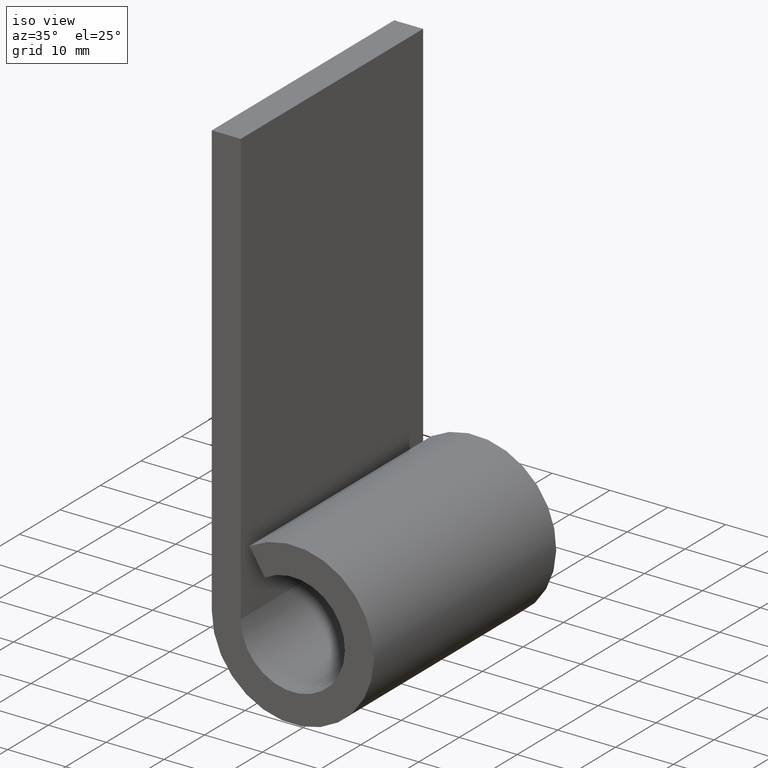
[diagram: clean part render]
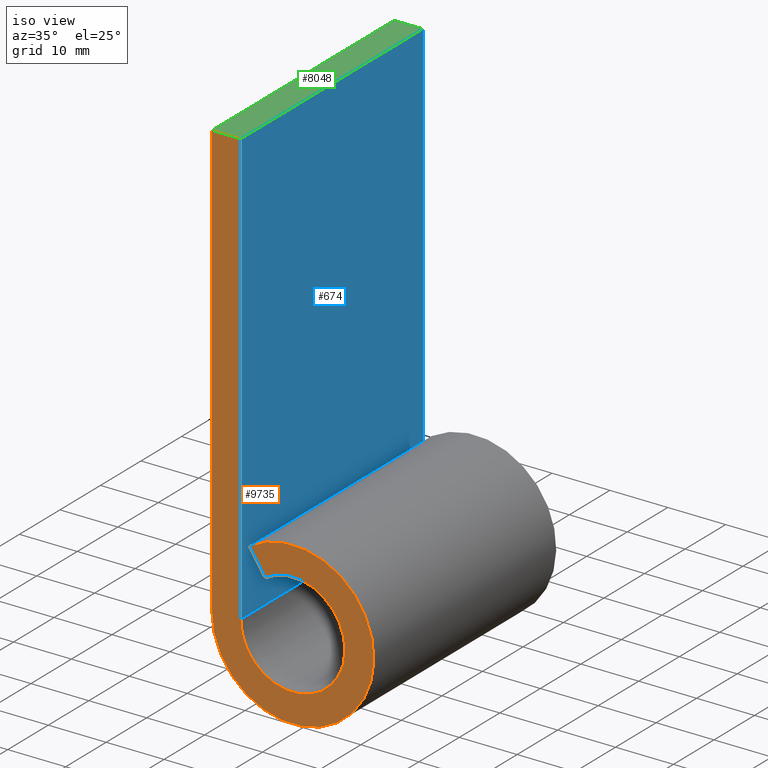
[diagram: same view with three faces highlighted in distinct colors, each labeled with its STEP entity id]
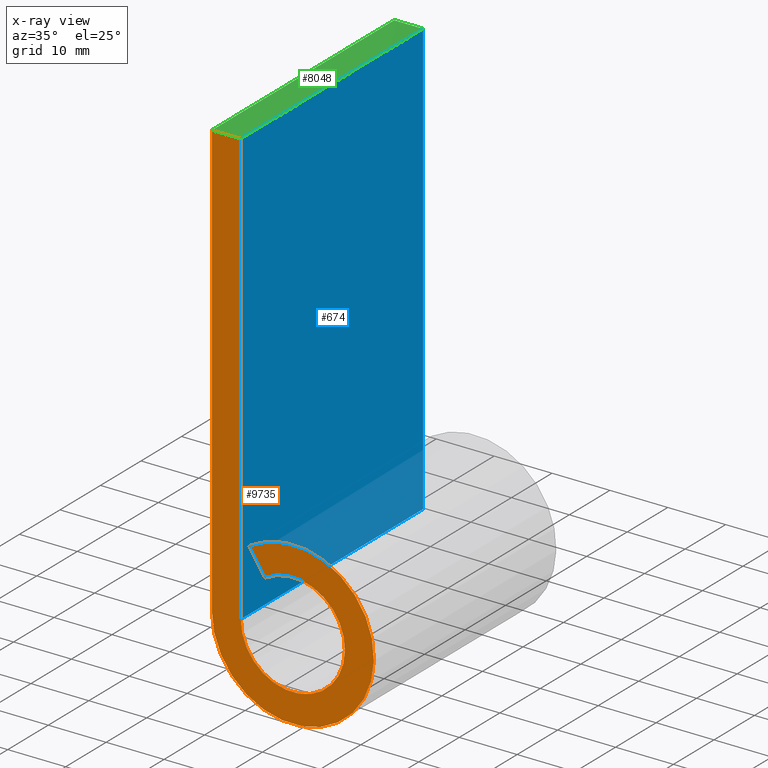
[diagram: x-ray of the same camera — body ghosted, the three highlighted faces saturated]
A machine part, iso view with three faces highlighted in distinct colors.
The next image is the same camera in x-ray (body ghosted, the three faces saturated) — at least one of them is partly hidden behind the body in this view.
Their STEP definitions:

[orange] entity #9735 — the highlighted planar face has unit normal (0, -1, 0).
#57 = VECTOR ( 'NONE', #6332, 1000.000000000000114 ) ;
#345 = VERTEX_POINT ( 'NONE', #6479 ) ;
#410 = CARTESIAN_POINT ( 'NONE',  ( -13.99999999999999822, -22.50000000000000000, 75.00000000000000000 ) ) ;
#713 = VERTEX_POINT ( 'NONE', #410 ) ;
#943 = VERTEX_POINT ( 'NONE', #2938 ) ;
#959 = AXIS2_PLACEMENT_3D ( 'NONE', #6820, #6085, #8614 ) ;
#1696 = ORIENTED_EDGE ( 'NONE', *, *, #11357, .F. ) ;
#1921 = DIRECTION ( 'NONE',  ( 0.000000000000000000, -1.000000000000000000, 0.000000000000000000 ) ) ;
#1935 = EDGE_CURVE ( 'NONE', #713, #345, #11274, .T. ) ;
#2123 = EDGE_CURVE ( 'NONE', #8665, #943, #4735, .T. ) ;
#2369 = EDGE_CURVE ( 'NONE', #345, #6331, #6689, .T. ) ;
#2690 = ORIENTED_EDGE ( 'NONE', *, *, #2123, .F. ) ;
#2890 = EDGE_CURVE ( 'NONE', #943, #7525, #9874, .T. ) ;
#2938 = CARTESIAN_POINT ( 'NONE',  ( -7.500000000000000000, -22.50000000000000000, 11.82159041753688911 ) ) ;
#3112 = DIRECTION ( 'NONE',  ( 2.312964634635742895E-17, 0.000000000000000000, -1.000000000000000000 ) ) ;
#3696 = DIRECTION ( 'NONE',  ( 0.000000000000000000, -0.000000000000000000, -1.000000000000000000 ) ) ;
#3732 = CARTESIAN_POINT ( 'NONE',  ( 8.673617379884035472E-15, -22.50000000000000000, 0.000000000000000000 ) ) ;
#4175 = CARTESIAN_POINT ( 'NONE',  ( -13.99999999999999645, -22.50000000000000000, 2.571758278209442450E-15 ) ) ;
#4419 = CIRCLE ( 'NONE', #959, 9.000000000000005329 ) ;
#4454 = CARTESIAN_POINT ( 'NONE',  ( -8.999999999999998224, -22.50000000000000000, 0.000000000000000000 ) ) ;
#4735 = LINE ( 'NONE', #10688, #57 ) ;
#5062 = EDGE_LOOP ( 'NONE', ( #5294, #1696, #5862, #2690, #6333, #8878 ) ) ;
#5294 = ORIENTED_EDGE ( 'NONE', *, *, #1935, .F. ) ;
#5591 = VECTOR ( 'NONE', #9191, 1000.000000000000000 ) ;
#5827 = CARTESIAN_POINT ( 'NONE',  ( -4.821428571428570287, -22.50000000000000000, 7.599593839845144139 ) ) ;
#5862 = ORIENTED_EDGE ( 'NONE', *, *, #2890, .F. ) ;
#6085 = DIRECTION ( 'NONE',  ( -0.000000000000000000, -1.000000000000000000, 0.000000000000000000 ) ) ;
#6203 = AXIS2_PLACEMENT_3D ( 'NONE', #7988, #8765, #10578 ) ;
#6331 = VERTEX_POINT ( 'NONE', #4454 ) ;
#6332 = DIRECTION ( 'NONE',  ( -0.5357142857142856984, -0.000000000000000000, 0.8443993155383492377 ) ) ;
#6333 = ORIENTED_EDGE ( 'NONE', *, *, #7507, .F. ) ;
#6464 = CARTESIAN_POINT ( 'NONE',  ( -13.99999999999999822, -22.50000000000000000, 75.00000000000000000 ) ) ;
#6479 = CARTESIAN_POINT ( 'NONE',  ( -9.000000000000000000, -22.50000000000000000, 75.00000000000000000 ) ) ;
#6526 = DIRECTION ( 'NONE',  ( 1.000000000000000000, 0.000000000000000000, 0.000000000000000000 ) ) ;
#6533 = VECTOR ( 'NONE', #3112, 1000.000000000000000 ) ;
#6689 = LINE ( 'NONE', #10118, #6533 ) ;
#6820 = CARTESIAN_POINT ( 'NONE',  ( 8.673617379884035472E-15, -22.50000000000000000, 0.000000000000000000 ) ) ;
#7507 = EDGE_CURVE ( 'NONE', #6331, #8665, #4419, .T. ) ;
#7525 = VERTEX_POINT ( 'NONE', #4175 ) ;
#7965 = LINE ( 'NONE', #6464, #5591 ) ;
#7988 = CARTESIAN_POINT ( 'NONE',  ( 8.673617379884035472E-15, -22.50000000000000000, 0.000000000000000000 ) ) ;
#8089 = PLANE ( 'NONE',  #9657 ) ;
#8614 = DIRECTION ( 'NONE',  ( 0.000000000000000000, 0.000000000000000000, -1.000000000000000000 ) ) ;
#8665 = VERTEX_POINT ( 'NONE', #5827 ) ;
#8765 = DIRECTION ( 'NONE',  ( 0.000000000000000000, 1.000000000000000000, -0.000000000000000000 ) ) ;
#8802 = VECTOR ( 'NONE', #6526, 1000.000000000000000 ) ;
#8878 = ORIENTED_EDGE ( 'NONE', *, *, #2369, .F. ) ;
#9191 = DIRECTION ( 'NONE',  ( -0.000000000000000000, -0.000000000000000000, 1.000000000000000000 ) ) ;
#9657 = AXIS2_PLACEMENT_3D ( 'NONE', #3732, #1921, #3696 ) ;
#9735 = ADVANCED_FACE ( 'NONE', ( #10161 ), #8089, .T. ) ;
#9874 = CIRCLE ( 'NONE', #6203, 14.00000000000000533 ) ;
#10118 = CARTESIAN_POINT ( 'NONE',  ( -9.000000000000000000, -22.50000000000000000, 75.00000000000000000 ) ) ;
#10161 = FACE_OUTER_BOUND ( 'NONE', #5062, .T. ) ;
#10578 = DIRECTION ( 'NONE',  ( 0.000000000000000000, 0.000000000000000000, -1.000000000000000000 ) ) ;
#10688 = CARTESIAN_POINT ( 'NONE',  ( -7.500000000000000000, -22.50000000000000000, 11.82159041753688911 ) ) ;
#10954 = CARTESIAN_POINT ( 'NONE',  ( -13.99999999999999822, -22.50000000000000000, 75.00000000000000000 ) ) ;
#11274 = LINE ( 'NONE', #10954, #8802 ) ;
#11357 = EDGE_CURVE ( 'NONE', #7525, #713, #7965, .T. ) ;

[blue] entity #674 — the highlighted planar face has unit normal (-1, 0, -0).
#345 = VERTEX_POINT ( 'NONE', #6479 ) ;
#423 = VECTOR ( 'NONE', #7749, 1000.000000000000000 ) ;
#629 = LINE ( 'NONE', #4440, #10736 ) ;
#674 = ADVANCED_FACE ( 'NONE', ( #6745 ), #7580, .F. ) ;
#772 = VECTOR ( 'NONE', #10195, 1000.000000000000000 ) ;
#1276 = ORIENTED_EDGE ( 'NONE', *, *, #10850, .F. ) ;
#1459 = CARTESIAN_POINT ( 'NONE',  ( -9.000000000000000000, 22.50000000000000000, 75.00000000000000000 ) ) ;
#2257 = DIRECTION ( 'NONE',  ( -1.000000000000000000, 0.000000000000000000, -2.312964634635743203E-17 ) ) ;
#2369 = EDGE_CURVE ( 'NONE', #345, #6331, #6689, .T. ) ;
#3002 = VERTEX_POINT ( 'NONE', #8387 ) ;
#3112 = DIRECTION ( 'NONE',  ( 2.312964634635742895E-17, 0.000000000000000000, -1.000000000000000000 ) ) ;
#3536 = ORIENTED_EDGE ( 'NONE', *, *, #2369, .T. ) ;
#3804 = AXIS2_PLACEMENT_3D ( 'NONE', #6718, #2257, #8466 ) ;
#3998 = CARTESIAN_POINT ( 'NONE',  ( -8.999999999999998224, 22.50000000000000000, 0.000000000000000000 ) ) ;
#4440 = CARTESIAN_POINT ( 'NONE',  ( -9.000000000000000000, 22.50000000000000000, 75.00000000000000000 ) ) ;
#4454 = CARTESIAN_POINT ( 'NONE',  ( -8.999999999999998224, -22.50000000000000000, 0.000000000000000000 ) ) ;
#4687 = ORIENTED_EDGE ( 'NONE', *, *, #4872, .F. ) ;
#4872 = EDGE_CURVE ( 'NONE', #3002, #9133, #8902, .T. ) ;
#5642 = ORIENTED_EDGE ( 'NONE', *, *, #9673, .T. ) ;
#6256 = DIRECTION ( 'NONE',  ( -0.000000000000000000, -1.000000000000000000, -0.000000000000000000 ) ) ;
#6331 = VERTEX_POINT ( 'NONE', #4454 ) ;
#6479 = CARTESIAN_POINT ( 'NONE',  ( -9.000000000000000000, -22.50000000000000000, 75.00000000000000000 ) ) ;
#6513 = EDGE_LOOP ( 'NONE', ( #3536, #1276, #4687, #5642 ) ) ;
#6533 = VECTOR ( 'NONE', #3112, 1000.000000000000000 ) ;
#6689 = LINE ( 'NONE', #10118, #6533 ) ;
#6718 = CARTESIAN_POINT ( 'NONE',  ( -9.000000000000000000, 22.50000000000000000, 75.00000000000000000 ) ) ;
#6745 = FACE_OUTER_BOUND ( 'NONE', #6513, .T. ) ;
#7439 = CARTESIAN_POINT ( 'NONE',  ( -8.999999999999998224, 22.50000000000000000, 0.000000000000000000 ) ) ;
#7580 = PLANE ( 'NONE',  #3804 ) ;
#7749 = DIRECTION ( 'NONE',  ( 2.312964634635742895E-17, 0.000000000000000000, -1.000000000000000000 ) ) ;
#8387 = CARTESIAN_POINT ( 'NONE',  ( -9.000000000000000000, 22.50000000000000000, 75.00000000000000000 ) ) ;
#8466 = DIRECTION ( 'NONE',  ( -2.312964634635743203E-17, 0.000000000000000000, 1.000000000000000000 ) ) ;
#8902 = LINE ( 'NONE', #1459, #423 ) ;
#9133 = VERTEX_POINT ( 'NONE', #7439 ) ;
#9673 = EDGE_CURVE ( 'NONE', #3002, #345, #629, .T. ) ;
#10118 = CARTESIAN_POINT ( 'NONE',  ( -9.000000000000000000, -22.50000000000000000, 75.00000000000000000 ) ) ;
#10163 = LINE ( 'NONE', #3998, #772 ) ;
#10195 = DIRECTION ( 'NONE',  ( -0.000000000000000000, -1.000000000000000000, -0.000000000000000000 ) ) ;
#10736 = VECTOR ( 'NONE', #6256, 1000.000000000000000 ) ;
#10850 = EDGE_CURVE ( 'NONE', #9133, #6331, #10163, .T. ) ;

[green] entity #8048 — the highlighted planar face has unit normal (0, 0, -1).
#98 = CARTESIAN_POINT ( 'NONE',  ( -13.99999999999999822, 22.50000000000000000, 75.00000000000000000 ) ) ;
#345 = VERTEX_POINT ( 'NONE', #6479 ) ;
#410 = CARTESIAN_POINT ( 'NONE',  ( -13.99999999999999822, -22.50000000000000000, 75.00000000000000000 ) ) ;
#629 = LINE ( 'NONE', #4440, #10736 ) ;
#713 = VERTEX_POINT ( 'NONE', #410 ) ;
#1008 = EDGE_LOOP ( 'NONE', ( #7604, #1846, #2779, #10282 ) ) ;
#1415 = VERTEX_POINT ( 'NONE', #9818 ) ;
#1778 = EDGE_CURVE ( 'NONE', #1415, #3002, #3384, .T. ) ;
#1846 = ORIENTED_EDGE ( 'NONE', *, *, #9673, .F. ) ;
#1935 = EDGE_CURVE ( 'NONE', #713, #345, #11274, .T. ) ;
#2011 = DIRECTION ( 'NONE',  ( -1.000000000000000000, 0.000000000000000000, -0.000000000000000000 ) ) ;
#2779 = ORIENTED_EDGE ( 'NONE', *, *, #1778, .F. ) ;
#3002 = VERTEX_POINT ( 'NONE', #8387 ) ;
#3384 = LINE ( 'NONE', #9700, #9192 ) ;
#4124 = AXIS2_PLACEMENT_3D ( 'NONE', #98, #5475, #2011 ) ;
#4440 = CARTESIAN_POINT ( 'NONE',  ( -9.000000000000000000, 22.50000000000000000, 75.00000000000000000 ) ) ;
#5475 = DIRECTION ( 'NONE',  ( 0.000000000000000000, 0.000000000000000000, -1.000000000000000000 ) ) ;
#5784 = FACE_OUTER_BOUND ( 'NONE', #1008, .T. ) ;
#6033 = DIRECTION ( 'NONE',  ( -0.000000000000000000, -1.000000000000000000, -0.000000000000000000 ) ) ;
#6256 = DIRECTION ( 'NONE',  ( -0.000000000000000000, -1.000000000000000000, -0.000000000000000000 ) ) ;
#6479 = CARTESIAN_POINT ( 'NONE',  ( -9.000000000000000000, -22.50000000000000000, 75.00000000000000000 ) ) ;
#6526 = DIRECTION ( 'NONE',  ( 1.000000000000000000, 0.000000000000000000, 0.000000000000000000 ) ) ;
#7063 = DIRECTION ( 'NONE',  ( 1.000000000000000000, 0.000000000000000000, 0.000000000000000000 ) ) ;
#7604 = ORIENTED_EDGE ( 'NONE', *, *, #1935, .T. ) ;
#8048 = ADVANCED_FACE ( 'NONE', ( #5784 ), #8069, .F. ) ;
#8069 = PLANE ( 'NONE',  #4124 ) ;
#8387 = CARTESIAN_POINT ( 'NONE',  ( -9.000000000000000000, 22.50000000000000000, 75.00000000000000000 ) ) ;
#8779 = EDGE_CURVE ( 'NONE', #1415, #713, #11312, .T. ) ;
#8802 = VECTOR ( 'NONE', #6526, 1000.000000000000000 ) ;
#9192 = VECTOR ( 'NONE', #7063, 1000.000000000000000 ) ;
#9344 = VECTOR ( 'NONE', #6033, 1000.000000000000000 ) ;
#9673 = EDGE_CURVE ( 'NONE', #3002, #345, #629, .T. ) ;
#9700 = CARTESIAN_POINT ( 'NONE',  ( -13.99999999999999822, 22.50000000000000000, 75.00000000000000000 ) ) ;
#9717 = CARTESIAN_POINT ( 'NONE',  ( -13.99999999999999822, 22.50000000000000000, 75.00000000000000000 ) ) ;
#9818 = CARTESIAN_POINT ( 'NONE',  ( -13.99999999999999822, 22.50000000000000000, 75.00000000000000000 ) ) ;
#10282 = ORIENTED_EDGE ( 'NONE', *, *, #8779, .T. ) ;
#10736 = VECTOR ( 'NONE', #6256, 1000.000000000000000 ) ;
#10954 = CARTESIAN_POINT ( 'NONE',  ( -13.99999999999999822, -22.50000000000000000, 75.00000000000000000 ) ) ;
#11274 = LINE ( 'NONE', #10954, #8802 ) ;
#11312 = LINE ( 'NONE', #9717, #9344 ) ;